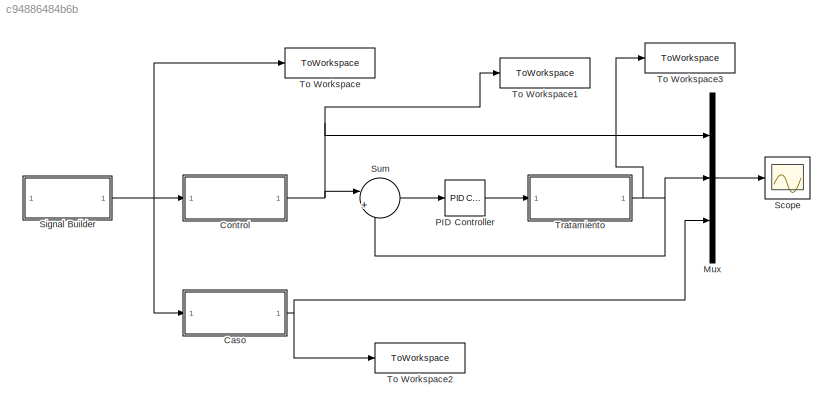
MODEL slx_c94886484b6b
KIND model
CONFIG AbsTol = auto
CONFIG EnableMultiTasking = off
CONFIG FixedStep = auto
CONFIG MaxStep = auto
CONFIG MinStep = auto
CONFIG RelTol = 1e-3
CONFIG SampleTimeConstraint = Unconstrained
CONFIG SolverName = ode15s
CONFIG StartTime = 0.0
CONFIG StopTime = 20
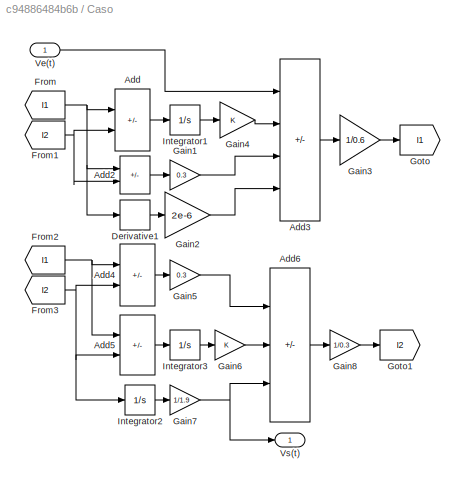
BLOCK [SubSystem] Caso
BLOCK [Sum] Caso/Add
  IconShape = rectangular
  Inputs = -+
BLOCK [Sum] Caso/Add2
  IconShape = rectangular
  Inputs = -+
BLOCK [Sum] Caso/Add3
  IconShape = rectangular
  Inputs = +++-
BLOCK [Sum] Caso/Add4
  IconShape = rectangular
  Inputs = +-
BLOCK [Sum] Caso/Add5
  IconShape = rectangular
  Inputs = +-
BLOCK [Sum] Caso/Add6
  IconShape = rectangular
  Inputs = ++-
BLOCK [Derivative] Caso/Derivative1
BLOCK [From] Caso/From
  GotoTag = I1
BLOCK [From] Caso/From1
  GotoTag = I2
BLOCK [From] Caso/From2
  GotoTag = I1
BLOCK [From] Caso/From3
  GotoTag = I2
BLOCK [Gain] Caso/Gain1
  Gain = 0.3
BLOCK [Gain] Caso/Gain2
  Gain = 2e-6
BLOCK [Gain] Caso/Gain3
  Gain = 1/0.6
BLOCK [Gain] Caso/Gain4
BLOCK [Gain] Caso/Gain5
  Gain = 0.3
BLOCK [Gain] Caso/Gain6
BLOCK [Gain] Caso/Gain7
  Gain = 1/1.9
BLOCK [Gain] Caso/Gain8
  Gain = 1/0.3
BLOCK [Goto] Caso/Goto
  GotoTag = I1
BLOCK [Goto] Caso/Goto1
  GotoTag = I2
BLOCK [Integrator] Caso/Integrator1
BLOCK [Integrator] Caso/Integrator2
BLOCK [Integrator] Caso/Integrator3
BLOCK [Inport] Caso/Ve(t)
BLOCK [Outport] Caso/Vs(t)
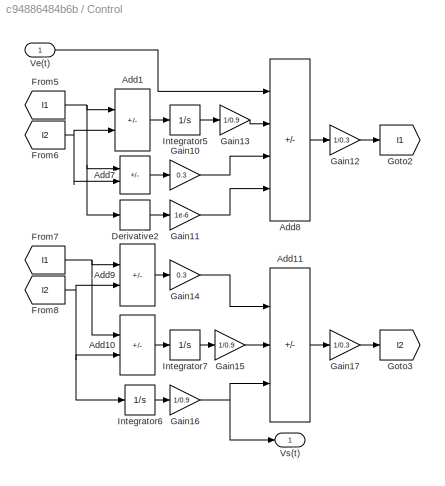
BLOCK [SubSystem] Control
BLOCK [Sum] Control/Add1
  IconShape = rectangular
  Inputs = -+
BLOCK [Sum] Control/Add10
  IconShape = rectangular
  Inputs = +-
BLOCK [Sum] Control/Add11
  IconShape = rectangular
  Inputs = ++-
BLOCK [Sum] Control/Add7
  IconShape = rectangular
  Inputs = -+
BLOCK [Sum] Control/Add8
  IconShape = rectangular
  Inputs = +++-
BLOCK [Sum] Control/Add9
  IconShape = rectangular
  Inputs = +-
BLOCK [Derivative] Control/Derivative2
BLOCK [From] Control/From5
  GotoTag = I1
BLOCK [From] Control/From6
  GotoTag = I2
BLOCK [From] Control/From7
  GotoTag = I1
BLOCK [From] Control/From8
  GotoTag = I2
BLOCK [Gain] Control/Gain10
  Gain = 0.3
BLOCK [Gain] Control/Gain11
  Gain = 1e-6
BLOCK [Gain] Control/Gain12
  Gain = 1/0.3
BLOCK [Gain] Control/Gain13
  Gain = 1/0.9
BLOCK [Gain] Control/Gain14
  Gain = 0.3
BLOCK [Gain] Control/Gain15
  Gain = 1/0.9
BLOCK [Gain] Control/Gain16
  Gain = 1/0.9
BLOCK [Gain] Control/Gain17
  Gain = 1/0.3
BLOCK [Goto] Control/Goto2
  GotoTag = I1
BLOCK [Goto] Control/Goto3
  GotoTag = I2
BLOCK [Integrator] Control/Integrator5
BLOCK [Integrator] Control/Integrator6
BLOCK [Integrator] Control/Integrator7
BLOCK [Inport] Control/Ve(t)
BLOCK [Outport] Control/Vs(t)
BLOCK [Mux] Mux
  DisplayOption = bar
  Inputs = 3
BLOCK [Reference] PID Controller  REF=slpidlib/PID Controller
  LibrarySourceBlock = simulink/Continuous/PID Controller
  SourceBlock = slpidlib/PID Controller
  SourceType = PID 1dof
BLOCK [Scope] Scope
  Floating = off
  NumInputPorts = 1
  ScopeSpecificationString = Simulink.scopes.TimeScopeBlockCfg('CurrentConfiguration', extmgr.ConfigurationSet(extmgr.Configuration('Core','General UI',true),extmgr.Configuration('Core','Source UI',true),extmgr.Configuration('Sources','WiredSimulink',true),extmgr.Configuration('Visuals','Time Domain',true,'SerializedDisplays',{struct('MinYLimReal','-0.11432','MaxYLimReal','1.02887','YLabelReal','','MinYLimMag','0.00000','MaxY...<+1556ch>
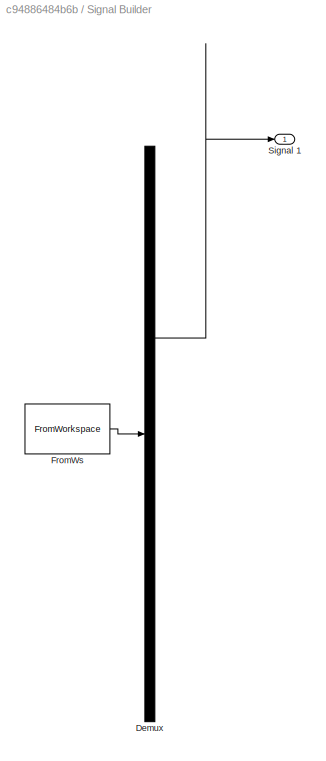
BLOCK [SubSystem] Signal Builder
  ClipboardFcn = sigbuilder_block('clipboard');
  CloseFcn = sigbuilder_block('close');
  ContinueFcn = sigbuilder_block('continue');
  CopyFcn = sigbuilder_block('copy');
  DeleteFcn = sigbuilder_block('delete');
  LoadFcn = sigbuilder_block('load');
  MaskHideContents = on
  ModelCloseFcn = sigbuilder_block('modelClose');
  NameChangeFcn = sigbuilder_block('namechange');
  OpenFcn = sigbuilder_block('open',[437.6 199.2 550.4 400 ]);
  PauseFcn = sigbuilder_block('pause');
  PreSaveFcn = sigbuilder_block('preSave');
  StartFcn = sigbuilder_block('start');
  StopFcn = sigbuilder_block('stop');
  Tag = STV Subsys
BLOCK [Demux] Signal Builder/Demux
  DisplayOption = none
  Outputs = 1
  Tag = STV Demux
BLOCK [FromWorkspace] Signal Builder/FromWs
  Tag = STV FromWs
  VariableName = tuvar
BLOCK [Outport] Signal Builder/Signal 1
  Tag = STV Outport
BLOCK [Sum] Sum
  Inputs = |+-
BLOCK [ToWorkspace] To Workspace
  FixptAsFi = on
  MaxDataPoints = inf
  SampleTime = -1
  SaveFormat = Timeseries
  VariableName = Ve
BLOCK [ToWorkspace] To Workspace1
  FixptAsFi = on
  MaxDataPoints = inf
  SampleTime = -1
  SaveFormat = Timeseries
  VariableName = Ppx
BLOCK [ToWorkspace] To Workspace2
  FixptAsFi = on
  MaxDataPoints = inf
  SampleTime = -1
  SaveFormat = Timeseries
  VariableName = Ppy
BLOCK [ToWorkspace] To Workspace3
  FixptAsFi = on
  MaxDataPoints = inf
  SampleTime = -1
  SaveFormat = Timeseries
  VariableName = Ppz
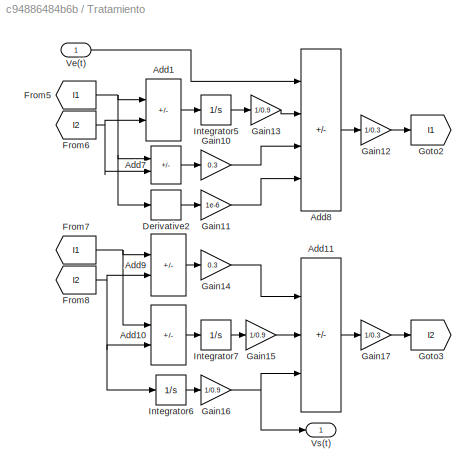
BLOCK [SubSystem] Tratamiento
BLOCK [Sum] Tratamiento/Add1
  IconShape = rectangular
  Inputs = -+
BLOCK [Sum] Tratamiento/Add10
  IconShape = rectangular
  Inputs = +-
BLOCK [Sum] Tratamiento/Add11
  IconShape = rectangular
  Inputs = ++-
BLOCK [Sum] Tratamiento/Add7
  IconShape = rectangular
  Inputs = -+
BLOCK [Sum] Tratamiento/Add8
  IconShape = rectangular
  Inputs = +++-
BLOCK [Sum] Tratamiento/Add9
  IconShape = rectangular
  Inputs = +-
BLOCK [Derivative] Tratamiento/Derivative2
BLOCK [From] Tratamiento/From5
  GotoTag = I1
BLOCK [From] Tratamiento/From6
  GotoTag = I2
BLOCK [From] Tratamiento/From7
  GotoTag = I1
BLOCK [From] Tratamiento/From8
  GotoTag = I2
BLOCK [Gain] Tratamiento/Gain10
  Gain = 0.3
BLOCK [Gain] Tratamiento/Gain11
  Gain = 1e-6
BLOCK [Gain] Tratamiento/Gain12
  Gain = 1/0.3
BLOCK [Gain] Tratamiento/Gain13
  Gain = 1/0.9
BLOCK [Gain] Tratamiento/Gain14
  Gain = 0.3
BLOCK [Gain] Tratamiento/Gain15
  Gain = 1/0.9
BLOCK [Gain] Tratamiento/Gain16
  Gain = 1/0.9
BLOCK [Gain] Tratamiento/Gain17
  Gain = 1/0.3
BLOCK [Goto] Tratamiento/Goto2
  GotoTag = I1
BLOCK [Goto] Tratamiento/Goto3
  GotoTag = I2
BLOCK [Integrator] Tratamiento/Integrator5
BLOCK [Integrator] Tratamiento/Integrator6
BLOCK [Integrator] Tratamiento/Integrator7
BLOCK [Inport] Tratamiento/Ve(t)
BLOCK [Outport] Tratamiento/Vs(t)
LINE Caso/Add2:1 -> Caso/Gain1:1
LINE Caso/Add3:1 -> Caso/Gain3:1
LINE Caso/Add4:1 -> Caso/Gain5:1
LINE Caso/Add5:1 -> Caso/Integrator3:1
LINE Caso/Add6:1 -> Caso/Gain8:1
LINE Caso/Add:1 -> Caso/Integrator1:1
LINE Caso/Derivative1:1 -> Caso/Gain2:1
NET Caso/From1:1 -> Caso/Add2:2, Caso/Add:2
NET Caso/From2:1 -> Caso/Add4:1, Caso/Add5:1
NET Caso/From3:1 -> Caso/Add4:2, Caso/Add5:2, Caso/Integrator2:1
NET Caso/From:1 -> Caso/Add2:1, Caso/Add:1, Caso/Derivative1:1
LINE Caso/Gain1:1 -> Caso/Add3:3
LINE Caso/Gain2:1 -> Caso/Add3:4
LINE Caso/Gain3:1 -> Caso/Goto:1
LINE Caso/Gain4:1 -> Caso/Add3:2
LINE Caso/Gain5:1 -> Caso/Add6:1
LINE Caso/Gain6:1 -> Caso/Add6:2
NET Caso/Gain7:1 -> Caso/Add6:3, Caso/Vs(t):1
LINE Caso/Gain8:1 -> Caso/Goto1:1
LINE Caso/Integrator1:1 -> Caso/Gain4:1
LINE Caso/Integrator2:1 -> Caso/Gain7:1
LINE Caso/Integrator3:1 -> Caso/Gain6:1
LINE Caso/Ve(t):1 -> Caso/Add3:1
NET Caso:1 -> Mux:3, To Workspace2:1
LINE Control/Add10:1 -> Control/Integrator7:1
LINE Control/Add11:1 -> Control/Gain17:1
LINE Control/Add1:1 -> Control/Integrator5:1
LINE Control/Add7:1 -> Control/Gain10:1
LINE Control/Add8:1 -> Control/Gain12:1
LINE Control/Add9:1 -> Control/Gain14:1
LINE Control/Derivative2:1 -> Control/Gain11:1
NET Control/From5:1 -> Control/Add1:1, Control/Add7:1, Control/Derivative2:1
NET Control/From6:1 -> Control/Add1:2, Control/Add7:2
NET Control/From7:1 -> Control/Add10:1, Control/Add9:1
NET Control/From8:1 -> Control/Add10:2, Control/Add9:2, Control/Integrator6:1
LINE Control/Gain10:1 -> Control/Add8:3
LINE Control/Gain11:1 -> Control/Add8:4
LINE Control/Gain12:1 -> Control/Goto2:1
LINE Control/Gain13:1 -> Control/Add8:2
LINE Control/Gain14:1 -> Control/Add11:1
LINE Control/Gain15:1 -> Control/Add11:2
NET Control/Gain16:1 -> Control/Add11:3, Control/Vs(t):1
LINE Control/Gain17:1 -> Control/Goto3:1
LINE Control/Integrator5:1 -> Control/Gain13:1
LINE Control/Integrator6:1 -> Control/Gain16:1
LINE Control/Integrator7:1 -> Control/Gain15:1
LINE Control/Ve(t):1 -> Control/Add8:1
NET Control:1 -> Mux:1, Sum:1, To Workspace1:1
LINE Mux:1 -> Scope:1
LINE PID Controller:1 -> Tratamiento:1
NET Signal Builder:1 -> Caso:1, Control:1, To Workspace:1
LINE Sum:1 -> PID Controller:1
LINE Tratamiento/Add10:1 -> Tratamiento/Integrator7:1
LINE Tratamiento/Add11:1 -> Tratamiento/Gain17:1
LINE Tratamiento/Add1:1 -> Tratamiento/Integrator5:1
LINE Tratamiento/Add7:1 -> Tratamiento/Gain10:1
LINE Tratamiento/Add8:1 -> Tratamiento/Gain12:1
LINE Tratamiento/Add9:1 -> Tratamiento/Gain14:1
LINE Tratamiento/Derivative2:1 -> Tratamiento/Gain11:1
NET Tratamiento/From5:1 -> Tratamiento/Add1:1, Tratamiento/Add7:1, Tratamiento/Derivative2:1
NET Tratamiento/From6:1 -> Tratamiento/Add1:2, Tratamiento/Add7:2
NET Tratamiento/From7:1 -> Tratamiento/Add10:1, Tratamiento/Add9:1
NET Tratamiento/From8:1 -> Tratamiento/Add10:2, Tratamiento/Add9:2, Tratamiento/Integrator6:1
LINE Tratamiento/Gain10:1 -> Tratamiento/Add8:3
LINE Tratamiento/Gain11:1 -> Tratamiento/Add8:4
LINE Tratamiento/Gain12:1 -> Tratamiento/Goto2:1
LINE Tratamiento/Gain13:1 -> Tratamiento/Add8:2
LINE Tratamiento/Gain14:1 -> Tratamiento/Add11:1
LINE Tratamiento/Gain15:1 -> Tratamiento/Add11:2
NET Tratamiento/Gain16:1 -> Tratamiento/Add11:3, Tratamiento/Vs(t):1
LINE Tratamiento/Gain17:1 -> Tratamiento/Goto3:1
LINE Tratamiento/Integrator5:1 -> Tratamiento/Gain13:1
LINE Tratamiento/Integrator6:1 -> Tratamiento/Gain16:1
LINE Tratamiento/Integrator7:1 -> Tratamiento/Gain15:1
LINE Tratamiento/Ve(t):1 -> Tratamiento/Add8:1
NET Tratamiento:1 -> Mux:2, Sum:2, To Workspace3:1
note: NET lines group one-source signal fan-out (src -> all destinations, sorted); 1:1 wires keep LINE
